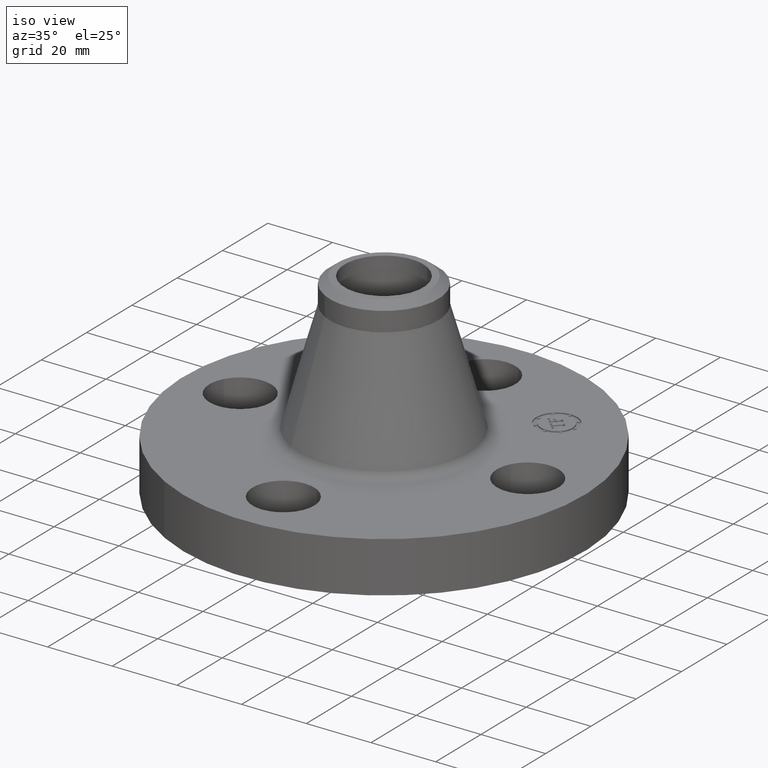
[diagram: clean part render]
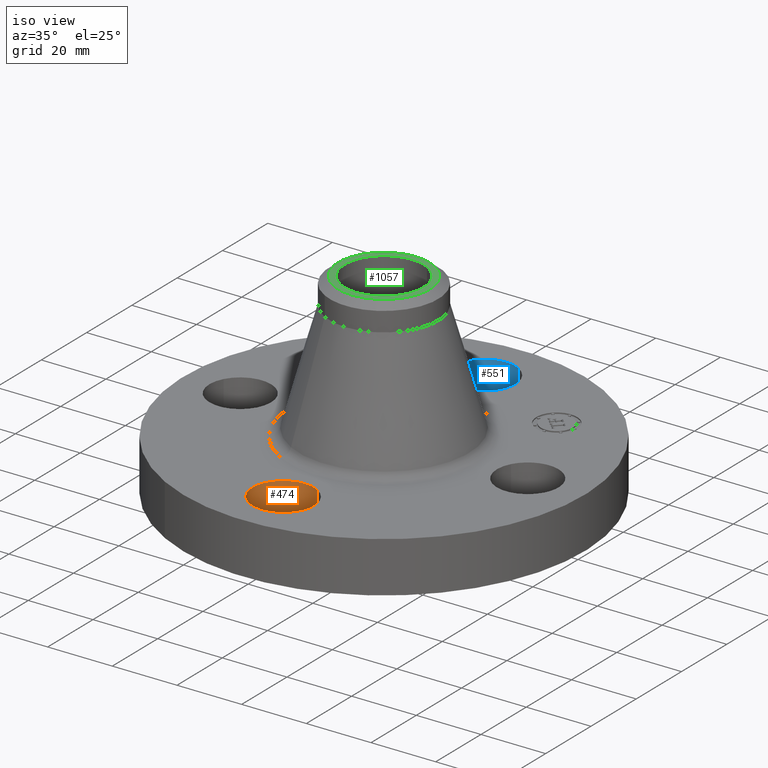
[diagram: same view with three faces highlighted in distinct colors, each labeled with its STEP entity id]
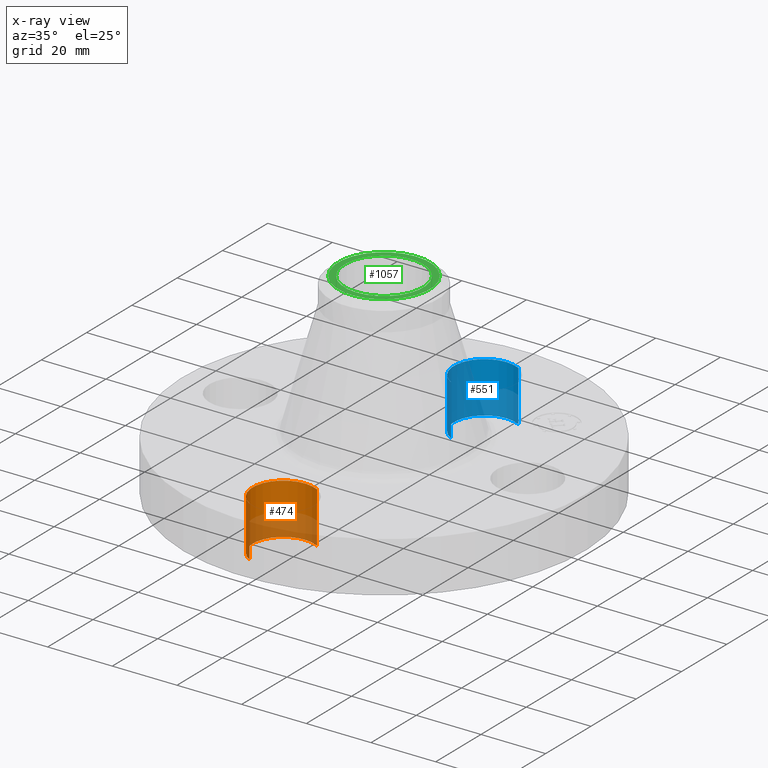
[diagram: x-ray of the same camera — body ghosted, the three highlighted faces saturated]
A machine part, iso view with three faces highlighted in distinct colors.
The next image is the same camera in x-ray (body ghosted, the three faces saturated) — at least one of them is partly hidden behind the body in this view.
Their STEP definitions:

[orange] entity #474 — the highlighted cylindrical surface (partial cylindrical patch) has radius 9.525 mm, axis along (0, -0, -1).
#180=AXIS2_PLACEMENT_3D('Circle Axis2P3D',#178,#179,$) ;
#278=AXIS2_PLACEMENT_3D('Circle Axis2P3D',#276,#277,$) ;
#466=AXIS2_PLACEMENT_3D('Cylinder Axis2P3D',#463,#464,#465) ;
#173=CARTESIAN_POINT('Vertex',(0.179784576973,-1.42090653932,0.)) ;
#175=CARTESIAN_POINT('Vertex',(-0.179784576973,-2.07909346071,0.)) ;
#178=CARTESIAN_POINT('Axis2P3D Location',(-3.49676543189E-017,-1.75000000002,0.)) ;
#276=CARTESIAN_POINT('Axis2P3D Location',(-3.49676543189E-017,-1.75000000003,0.620000000002)) ;
#280=CARTESIAN_POINT('Vertex',(-0.179784576973,-2.07909346072,0.620000000002)) ;
#282=CARTESIAN_POINT('Vertex',(0.179784576977,-1.4209065393,0.619999999987)) ;
#439=CARTESIAN_POINT('Line Origine',(0.179784576977,-1.4209065393,0.310000000001)) ;
#444=CARTESIAN_POINT('Line Origine',(-0.179784576977,-2.07909346072,0.310000000001)) ;
#463=CARTESIAN_POINT('Axis2P3D Location',(-1.72584639625E-016,-1.75000000001,0.616062992128)) ;
#179=DIRECTION('Axis2P3D Direction',(0.,0.,-0.0393700787402)) ;
#277=DIRECTION('Axis2P3D Direction',(0.,0.,-0.0393700787402)) ;
#440=DIRECTION('Vector Direction',(0.,0.,-0.0393700787402)) ;
#445=DIRECTION('Vector Direction',(0.,0.,-0.0393700787402)) ;
#464=DIRECTION('Axis2P3D Direction',(0.,-0.,-0.0393700787402)) ;
#465=DIRECTION('Axis2P3D XDirection',(-0.0188750212049,-0.0345504945626,0.)) ;
#441=VECTOR('Line Direction',#440,0.0393700787402) ;
#446=VECTOR('Line Direction',#445,0.0393700787402) ;
#469=ORIENTED_EDGE('',*,*,#448,.F.) ;
#470=ORIENTED_EDGE('',*,*,#182,.T.) ;
#471=ORIENTED_EDGE('',*,*,#443,.T.) ;
#472=ORIENTED_EDGE('',*,*,#284,.F.) ;
#474=ADVANCED_FACE('PartBody',(#473),#467,.F.) ;
#181=CIRCLE('generated circle',#180,0.374999999988) ;
#279=CIRCLE('generated circle',#278,0.374999999988) ;
#467=CYLINDRICAL_SURFACE('generated cylinder',#466,0.375000000001) ;
#182=EDGE_CURVE('',#176,#174,#181,.T.) ;
#284=EDGE_CURVE('',#281,#283,#279,.T.) ;
#443=EDGE_CURVE('',#174,#283,#442,.F.) ;
#448=EDGE_CURVE('',#176,#281,#447,.F.) ;
#468=EDGE_LOOP('',(#469,#470,#471,#472)) ;
#473=FACE_OUTER_BOUND('',#468,.T.) ;
#442=LINE('Line',#439,#441) ;
#447=LINE('Line',#444,#446) ;
#174=VERTEX_POINT('',#173) ;
#176=VERTEX_POINT('',#175) ;
#281=VERTEX_POINT('',#280) ;
#283=VERTEX_POINT('',#282) ;

[blue] entity #551 — the highlighted cylindrical surface (partial cylindrical patch) has radius 9.525 mm, axis along (0, 0, -1).
#207=AXIS2_PLACEMENT_3D('Circle Axis2P3D',#205,#206,$) ;
#323=AXIS2_PLACEMENT_3D('Circle Axis2P3D',#321,#322,$) ;
#533=AXIS2_PLACEMENT_3D('Cylinder Axis2P3D',#530,#531,#532) ;
#205=CARTESIAN_POINT('Axis2P3D Location',(-3.49676543189E-017,1.75,0.)) ;
#209=CARTESIAN_POINT('Vertex',(-0.179784576973,1.4209065393,0.)) ;
#211=CARTESIAN_POINT('Vertex',(0.179784576973,2.0790934607,0.)) ;
#316=CARTESIAN_POINT('Vertex',(0.179784576973,2.07909346069,0.620000000002)) ;
#318=CARTESIAN_POINT('Vertex',(-0.179784576977,1.4209065393,0.619999999987)) ;
#321=CARTESIAN_POINT('Axis2P3D Location',(-3.49676543189E-017,1.74999999999,0.620000000002)) ;
#530=CARTESIAN_POINT('Axis2P3D Location',(-3.21469784777E-016,1.75000000001,0.616062992128)) ;
#535=CARTESIAN_POINT('Line Origine',(-0.179784576977,1.4209065393,0.310000000001)) ;
#540=CARTESIAN_POINT('Line Origine',(0.179784576977,2.07909346072,0.310000000001)) ;
#206=DIRECTION('Axis2P3D Direction',(0.,0.,-0.0393700787402)) ;
#322=DIRECTION('Axis2P3D Direction',(0.,0.,-0.0393700787402)) ;
#531=DIRECTION('Axis2P3D Direction',(0.,0.,-0.0393700787402)) ;
#532=DIRECTION('Axis2P3D XDirection',(-0.0188750212049,-0.0345504945626,0.)) ;
#536=DIRECTION('Vector Direction',(0.,0.,-0.0393700787402)) ;
#541=DIRECTION('Vector Direction',(0.,0.,-0.0393700787402)) ;
#537=VECTOR('Line Direction',#536,0.0393700787402) ;
#542=VECTOR('Line Direction',#541,0.0393700787402) ;
#546=ORIENTED_EDGE('',*,*,#539,.F.) ;
#547=ORIENTED_EDGE('',*,*,#213,.T.) ;
#548=ORIENTED_EDGE('',*,*,#544,.T.) ;
#549=ORIENTED_EDGE('',*,*,#325,.F.) ;
#551=ADVANCED_FACE('PartBody',(#550),#534,.F.) ;
#208=CIRCLE('generated circle',#207,0.374999999988) ;
#324=CIRCLE('generated circle',#323,0.374999999988) ;
#534=CYLINDRICAL_SURFACE('generated cylinder',#533,0.375000000001) ;
#213=EDGE_CURVE('',#210,#212,#208,.T.) ;
#325=EDGE_CURVE('',#319,#317,#324,.T.) ;
#539=EDGE_CURVE('',#210,#319,#538,.F.) ;
#544=EDGE_CURVE('',#212,#317,#543,.F.) ;
#545=EDGE_LOOP('',(#546,#547,#548,#549)) ;
#550=FACE_OUTER_BOUND('',#545,.T.) ;
#538=LINE('Line',#535,#537) ;
#543=LINE('Line',#540,#542) ;
#210=VERTEX_POINT('',#209) ;
#212=VERTEX_POINT('',#211) ;
#317=VERTEX_POINT('',#316) ;
#319=VERTEX_POINT('',#318) ;

[green] entity #1057 — the highlighted planar face has unit normal (0, 0, -1).
#722=AXIS2_PLACEMENT_3D('Circle Axis2P3D',#720,#721,$) ;
#1033=AXIS2_PLACEMENT_3D('Plane Axis2P3D',#1030,#1031,#1032) ;
#1037=AXIS2_PLACEMENT_3D('Circle Axis2P3D',#1035,#1036,$) ;
#1046=AXIS2_PLACEMENT_3D('Circle Axis2P3D',#1044,#1045,$) ;
#720=CARTESIAN_POINT('Axis2P3D Location',(0.,0.,2.37999999999)) ;
#724=CARTESIAN_POINT('Vertex',(0.229405120206,0.419923255837,2.38000000001)) ;
#726=CARTESIAN_POINT('Vertex',(-0.229405120223,-0.419923255866,2.37999999999)) ;
#759=CARTESIAN_POINT('Control Point',(-0.229405120223,-0.419923255866,2.38000000001)) ;
#760=CARTESIAN_POINT('Control Point',(-0.295366511008,-0.383888383847,2.38000000001)) ;
#761=CARTESIAN_POINT('Control Point',(-0.354252471218,-0.334902023033,2.38000000001)) ;
#762=CARTESIAN_POINT('Control Point',(-0.402660838744,-0.274806163208,2.38000000001)) ;
#763=CARTESIAN_POINT('Control Point',(-0.473305668442,-0.138871666265,2.38000000001)) ;
#764=CARTESIAN_POINT('Control Point',(-0.48730581617,0.0136828331305,2.38)) ;
#765=CARTESIAN_POINT('Control Point',(-0.479041511111,0.0904069080775,2.38)) ;
#766=CARTESIAN_POINT('Control Point',(-0.432874744661,0.236480550799,2.38)) ;
#767=CARTESIAN_POINT('Control Point',(-0.334902023033,0.354252471218,2.38)) ;
#768=CARTESIAN_POINT('Control Point',(-0.274806163209,0.402660838744,2.38)) ;
#769=CARTESIAN_POINT('Control Point',(-0.138871666265,0.473305668442,2.38)) ;
#770=CARTESIAN_POINT('Control Point',(0.0136828331304,0.48730581617,2.37999999999)) ;
#771=CARTESIAN_POINT('Control Point',(0.0904069080775,0.479041511111,2.37999999999)) ;
#772=CARTESIAN_POINT('Control Point',(0.163443729438,0.455958127886,2.37999999999)) ;
#773=CARTESIAN_POINT('Control Point',(0.229405120223,0.419923255866,2.37999999999)) ;
#1030=CARTESIAN_POINT('Axis2P3D Location',(0.,0.660000000003,2.38000000001)) ;
#1035=CARTESIAN_POINT('Axis2P3D Location',(-5.24514814784E-017,-1.4013217533E-011,2.38000000001)) ;
#1039=CARTESIAN_POINT('Vertex',(0.267155162633,-0.489024244991,2.38000000001)) ;
#1041=CARTESIAN_POINT('Vertex',(-0.267155162633,0.489024244991,2.38000000001)) ;
#1044=CARTESIAN_POINT('Axis2P3D Location',(3.08536048853E-011,2.84245068427E-012,2.38000000001)) ;
#721=DIRECTION('Axis2P3D Direction',(0.,0.,-0.0393700787402)) ;
#1031=DIRECTION('Axis2P3D Direction',(0.,0.,-0.0393700787402)) ;
#1032=DIRECTION('Axis2P3D XDirection',(0.0393700787402,0.,0.)) ;
#1036=DIRECTION('Axis2P3D Direction',(0.,0.,-0.0393700787402)) ;
#1045=DIRECTION('Axis2P3D Direction',(0.,0.,-0.0393700787402)) ;
#1050=ORIENTED_EDGE('',*,*,#1043,.T.) ;
#1051=ORIENTED_EDGE('',*,*,#1048,.T.) ;
#1054=ORIENTED_EDGE('',*,*,#774,.T.) ;
#1055=ORIENTED_EDGE('',*,*,#728,.T.) ;
#1056=FACE_BOUND('',#1053,.T.) ;
#1057=ADVANCED_FACE('PartBody',(#1052,#1056),#1034,.F.) ;
#758=B_SPLINE_CURVE_WITH_KNOTS('',5,(#759,#760,#761,#762,#763,#764,#765,#766,#767,#768,#769,#770,#771,#772,#773),.UNSPECIFIED.,.F.,.U.,(6,3,3,3,6),(-19.0913014763,-9.54565073816,-1.7763568394E-015,9.54565073816,19.0913014763),.UNSPECIFIED.) ;
#723=CIRCLE('generated circle',#722,0.478500000002) ;
#1038=CIRCLE('generated circle',#1037,0.557240157504) ;
#1047=CIRCLE('generated circle',#1046,0.557240157504) ;
#728=EDGE_CURVE('',#725,#727,#723,.T.) ;
#774=EDGE_CURVE('',#727,#725,#758,.T.) ;
#1043=EDGE_CURVE('',#1040,#1042,#1038,.F.) ;
#1048=EDGE_CURVE('',#1042,#1040,#1047,.F.) ;
#1049=EDGE_LOOP('',(#1050,#1051)) ;
#1053=EDGE_LOOP('',(#1054,#1055)) ;
#1052=FACE_OUTER_BOUND('',#1049,.T.) ;
#1034=PLANE('',#1033) ;
#725=VERTEX_POINT('',#724) ;
#727=VERTEX_POINT('',#726) ;
#1040=VERTEX_POINT('',#1039) ;
#1042=VERTEX_POINT('',#1041) ;